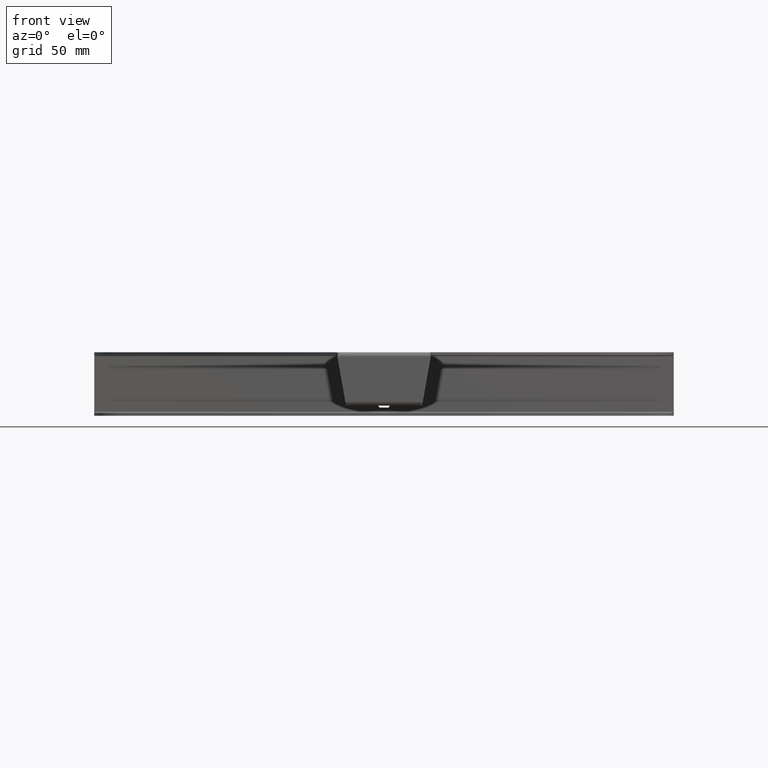
[diagram: clean part render]
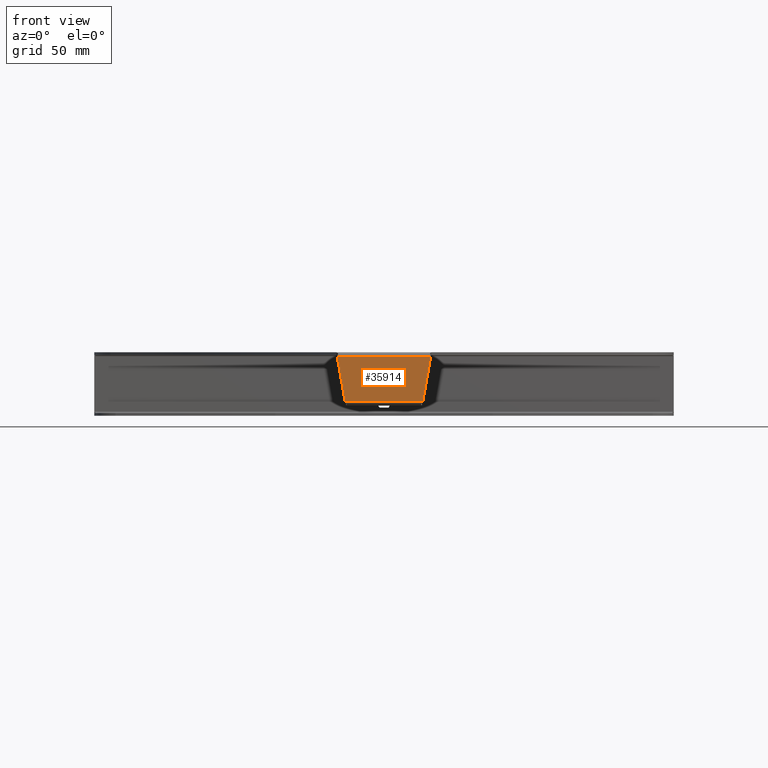
[diagram: same view with one face highlighted and labeled with its STEP entity id]
A machine part, front view. The second image highlights one B-rep face of the part: STEP entity #35914.
In plain terms, the highlighted planar face has unit normal (0, -1, -0).
Its self-contained STEP definition (entity closure, byte-faithful):
#1351 = ORIENTED_EDGE ( 'NONE', *, *, #52293, .F. ) ;
#1831 = CARTESIAN_POINT ( 'NONE',  ( 0.000000000000000000, -159.4724153085126375, 158.6140079621018799 ) ) ;
#3708 = ORIENTED_EDGE ( 'NONE', *, *, #4219, .T. ) ;
#4219 = EDGE_CURVE ( 'NONE', #30541, #11869, #7672, .T. ) ;
#4806 = CARTESIAN_POINT ( 'NONE',  ( 6.867149768943931489E-14, -159.4724153085120975, -1.000000000000028644 ) ) ;
#4986 = DIRECTION ( 'NONE',  ( -1.000000000000000000, 1.502156707636936140E-30, -4.302347805572578209E-16 ) ) ;
#6397 = ORIENTED_EDGE ( 'NONE', *, *, #50570, .T. ) ;
#6640 = LINE ( 'NONE', #34882, #13016 ) ;
#7672 = LINE ( 'NONE', #4806, #39028 ) ;
#9244 = CARTESIAN_POINT ( 'NONE',  ( 32.25631314567224450, -159.4724153085120975, -0.9999999999999562572 ) ) ;
#10296 = DIRECTION ( 'NONE',  ( -1.000000000000000000, -9.035468619098689457E-31, 2.587861065897175959E-16 ) ) ;
#11215 = DIRECTION ( 'NONE',  ( -0.1736481776669123733, -3.438437891990172906E-15, 0.9848077530122112400 ) ) ;
#11869 = VERTEX_POINT ( 'NONE', #37060 ) ;
#13016 = VECTOR ( 'NONE', #18773, 1000.000000000000227 ) ;
#14489 = VERTEX_POINT ( 'NONE', #37054 ) ;
#18493 = DIRECTION ( 'NONE',  ( 0.000000000000000000, -1.000000000000000000, -3.491481338843133355E-15 ) ) ;
#18773 = DIRECTION ( 'NONE',  ( 0.1736481776669135668, -3.438437891990171722E-15, 0.9848077530122109069 ) ) ;
#23061 = VECTOR ( 'NONE', #10296, 1000.000000000000000 ) ;
#28296 = AXIS2_PLACEMENT_3D ( 'NONE', #1831, #18493, #51606 ) ;
#30118 = CARTESIAN_POINT ( 'NONE',  ( -4.929440867624054658E-14, -159.4724153085119838, -31.86920354350053586 ) ) ;
#30541 = VERTEX_POINT ( 'NONE', #9244 ) ;
#30819 = PLANE ( 'NONE',  #28296 ) ;
#31609 = CARTESIAN_POINT ( 'NONE',  ( -58.57926923119855189, -159.4724153085126090, 148.2849022864574238 ) ) ;
#31920 = VERTEX_POINT ( 'NONE', #52380 ) ;
#33335 = VECTOR ( 'NONE', #11215, 1000.000000000000114 ) ;
#34882 = CARTESIAN_POINT ( 'NONE',  ( 58.57926923119886453, -159.4724153085126090, 148.2849022864573385 ) ) ;
#35914 = ADVANCED_FACE ( 'NONE', ( #43885 ), #30819, .T. ) ;
#37054 = CARTESIAN_POINT ( 'NONE',  ( 26.81323968797222435, -159.4724153085119838, -31.86920354350057494 ) ) ;
#37060 = CARTESIAN_POINT ( 'NONE',  ( -32.25631314567208818, -159.4724153085120975, -1.000000000000028644 ) ) ;
#37302 = EDGE_LOOP ( 'NONE', ( #44175, #6397, #3708, #1351 ) ) ;
#39028 = VECTOR ( 'NONE', #4986, 1000.000000000000000 ) ;
#43578 = LINE ( 'NONE', #30118, #23061 ) ;
#43885 = FACE_OUTER_BOUND ( 'NONE', #37302, .T. ) ;
#44175 = ORIENTED_EDGE ( 'NONE', *, *, #46293, .F. ) ;
#45480 = LINE ( 'NONE', #31609, #33335 ) ;
#46293 = EDGE_CURVE ( 'NONE', #14489, #31920, #43578, .T. ) ;
#50570 = EDGE_CURVE ( 'NONE', #14489, #30541, #6640, .T. ) ;
#51606 = DIRECTION ( 'NONE',  ( 1.000000000000000000, 0.000000000000000000, 0.000000000000000000 ) ) ;
#52293 = EDGE_CURVE ( 'NONE', #31920, #11869, #45480, .T. ) ;
#52380 = CARTESIAN_POINT ( 'NONE',  ( -26.81323968797217816, -159.4724153085119838, -31.86920354350055007 ) ) ;